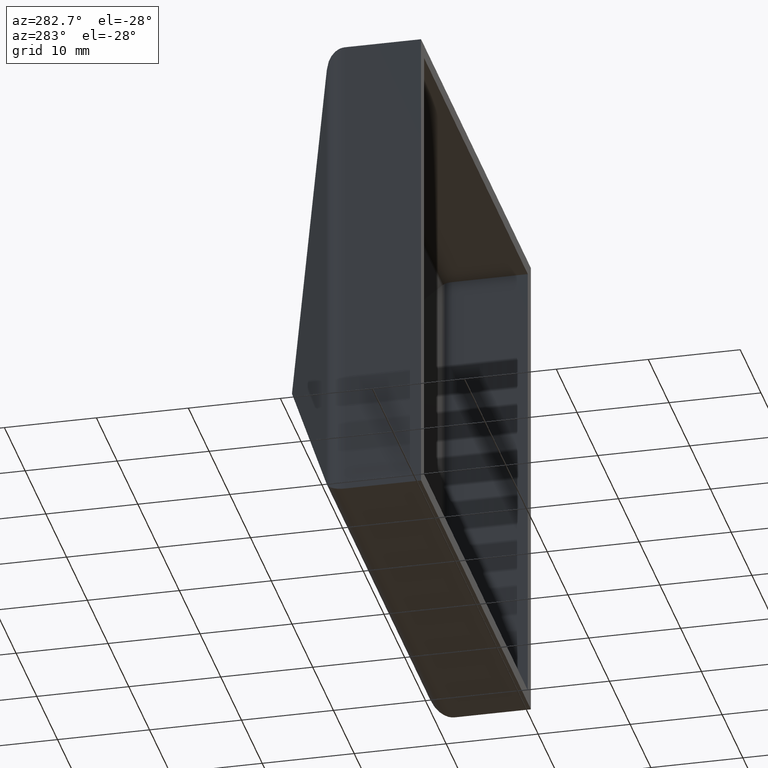
[diagram: clean part render]
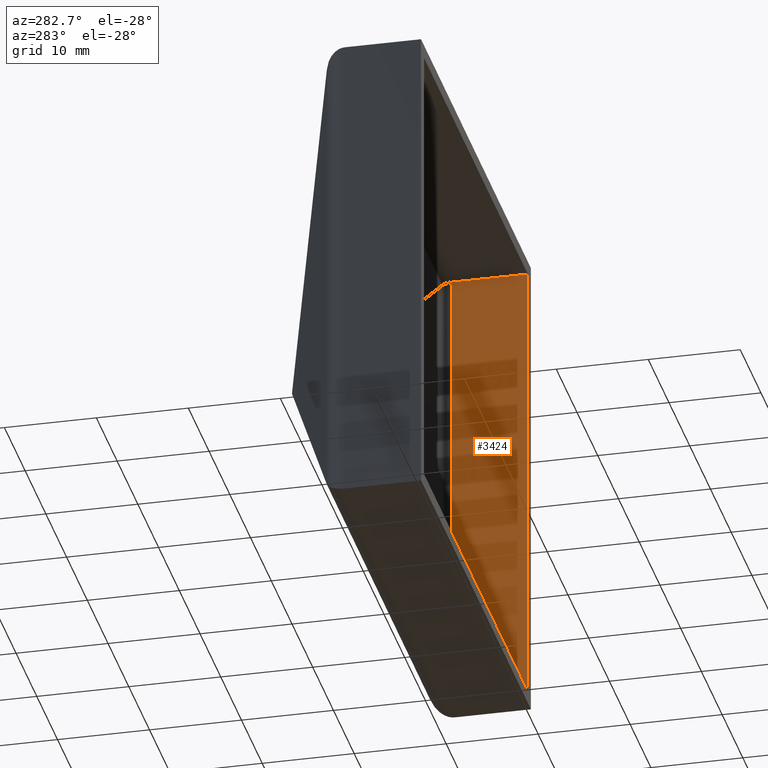
[diagram: same view with one face highlighted and labeled with its STEP entity id]
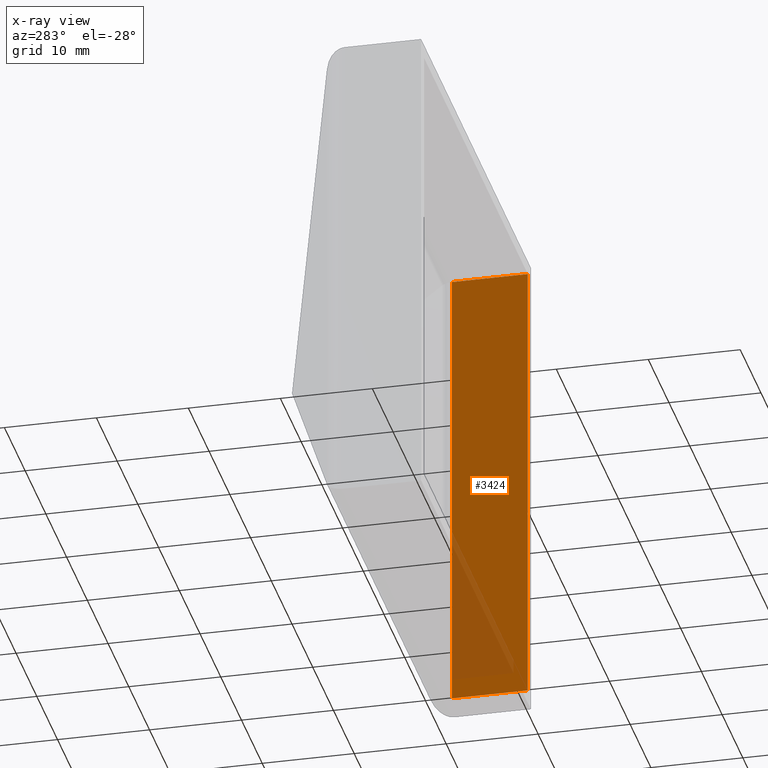
[diagram: x-ray of the same camera — body ghosted, the highlighted face saturated]
A machine part, auxiliary view. The second image highlights one B-rep face of the part: STEP entity #3424.
The next image is the same camera in x-ray: the body ghosted, the highlighted face saturated — about 16% of this face is hidden behind the body in this view.
In plain terms, the highlighted planar face has unit normal (-1, 0, 0).
Its self-contained STEP definition (entity closure, byte-faithful):
#222 = VECTOR ( 'NONE', #6577, 1000.000000000000000 ) ;
#863 = ORIENTED_EDGE ( 'NONE', *, *, #12139, .F. ) ;
#1090 = DIRECTION ( 'NONE',  ( 0.000000000000000000, -1.000000000000000000, 0.000000000000000000 ) ) ;
#1255 = ORIENTED_EDGE ( 'NONE', *, *, #7893, .F. ) ;
#1979 = VERTEX_POINT ( 'NONE', #4930 ) ;
#2514 = CARTESIAN_POINT ( 'NONE',  ( 25.00000000000000000, 8.271739631613600707, 25.00000000000000000 ) ) ;
#3083 = CARTESIAN_POINT ( 'NONE',  ( 24.99999999999999289, 0.000000000000000000, -26.49999999999999645 ) ) ;
#3254 = LINE ( 'NONE', #3885, #3527 ) ;
#3265 = EDGE_CURVE ( 'NONE', #7138, #9124, #8631, .T. ) ;
#3424 = ADVANCED_FACE ( 'NONE', ( #7044 ), #7454, .T. ) ;
#3527 = VECTOR ( 'NONE', #1090, 1000.000000000000000 ) ;
#3707 = CARTESIAN_POINT ( 'NONE',  ( 24.99999999999999289, 25.00000000000000000, -26.49999999999999645 ) ) ;
#3885 = CARTESIAN_POINT ( 'NONE',  ( 24.99999999999998934, 25.00000000000000000, -24.99999999999999289 ) ) ;
#4385 = VECTOR ( 'NONE', #5910, 1000.000000000000000 ) ;
#4911 = LINE ( 'NONE', #3083, #11784 ) ;
#4930 = CARTESIAN_POINT ( 'NONE',  ( 25.00000000000000355, 0.000000000000000000, 25.00000000000000000 ) ) ;
#5263 = ORIENTED_EDGE ( 'NONE', *, *, #8685, .T. ) ;
#5466 = DIRECTION ( 'NONE',  ( 1.963837897332234935E-16, 0.000000000000000000, 1.000000000000000000 ) ) ;
#5910 = DIRECTION ( 'NONE',  ( 0.000000000000000000, -1.000000000000000000, 0.000000000000000000 ) ) ;
#6577 = DIRECTION ( 'NONE',  ( 1.963837897332234935E-16, 0.000000000000000000, 1.000000000000000000 ) ) ;
#7044 = FACE_OUTER_BOUND ( 'NONE', #7669, .T. ) ;
#7138 = VERTEX_POINT ( 'NONE', #7287 ) ;
#7287 = CARTESIAN_POINT ( 'NONE',  ( 24.99999999999999289, 8.271739631613602484, -25.00000000000000000 ) ) ;
#7454 = PLANE ( 'NONE',  #8849 ) ;
#7669 = EDGE_LOOP ( 'NONE', ( #11642, #5263, #1255, #863 ) ) ;
#7893 = EDGE_CURVE ( 'NONE', #1979, #9416, #4911, .T. ) ;
#8631 = LINE ( 'NONE', #9950, #222 ) ;
#8685 = EDGE_CURVE ( 'NONE', #7138, #9416, #3254, .T. ) ;
#8849 = AXIS2_PLACEMENT_3D ( 'NONE', #3707, #11162, #5466 ) ;
#9124 = VERTEX_POINT ( 'NONE', #2514 ) ;
#9416 = VERTEX_POINT ( 'NONE', #10243 ) ;
#9950 = CARTESIAN_POINT ( 'NONE',  ( 24.99999999999999289, 8.271739631613602484, -26.49999999999999645 ) ) ;
#10243 = CARTESIAN_POINT ( 'NONE',  ( 24.99999999999999289, 0.000000000000000000, -24.99999999999999289 ) ) ;
#10490 = CARTESIAN_POINT ( 'NONE',  ( 25.00000000000000355, 25.00000000000000000, 25.00000000000000000 ) ) ;
#11162 = DIRECTION ( 'NONE',  ( -1.000000000000000000, 0.000000000000000000, 1.963837897332234935E-16 ) ) ;
#11476 = LINE ( 'NONE', #10490, #4385 ) ;
#11597 = DIRECTION ( 'NONE',  ( -1.963837897332234935E-16, 0.000000000000000000, -1.000000000000000000 ) ) ;
#11642 = ORIENTED_EDGE ( 'NONE', *, *, #3265, .F. ) ;
#11784 = VECTOR ( 'NONE', #11597, 1000.000000000000000 ) ;
#12139 = EDGE_CURVE ( 'NONE', #9124, #1979, #11476, .T. ) ;